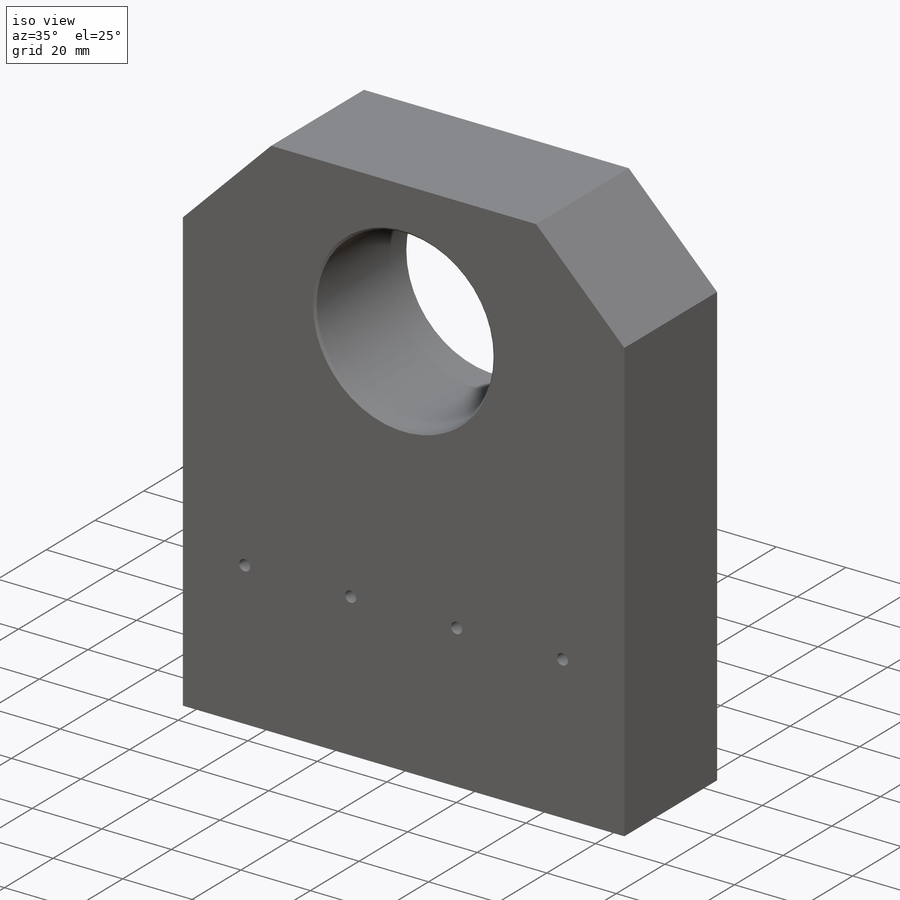
[diagram: iso view]
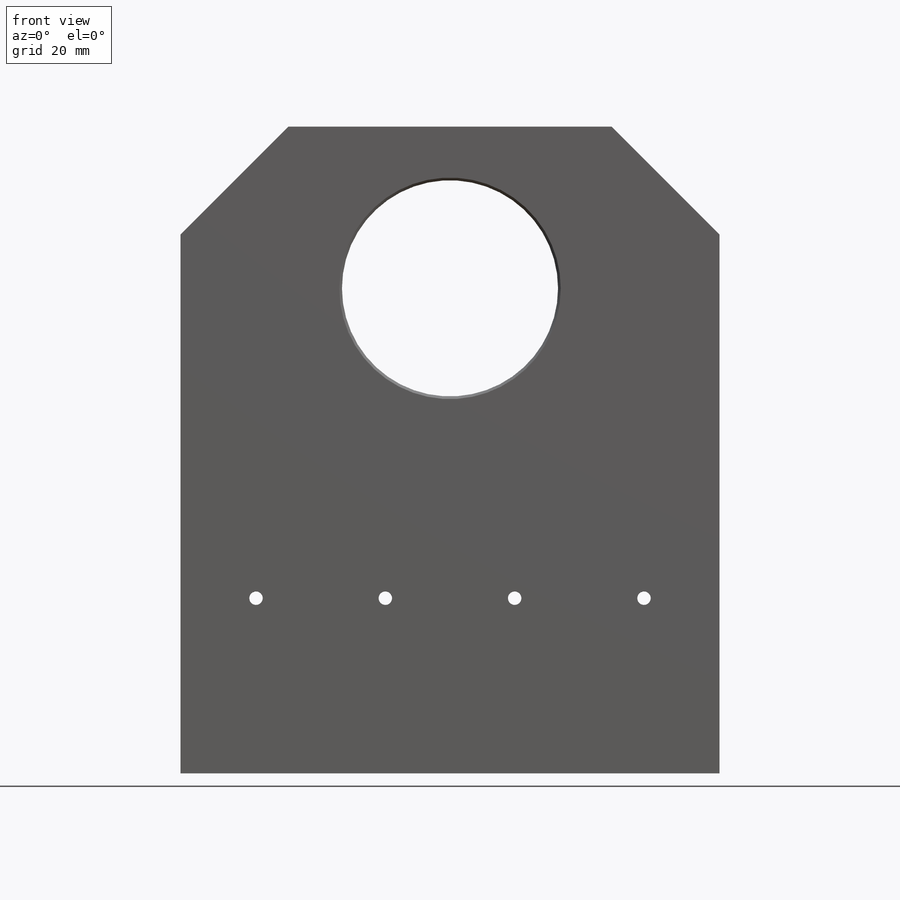
[diagram: front view]
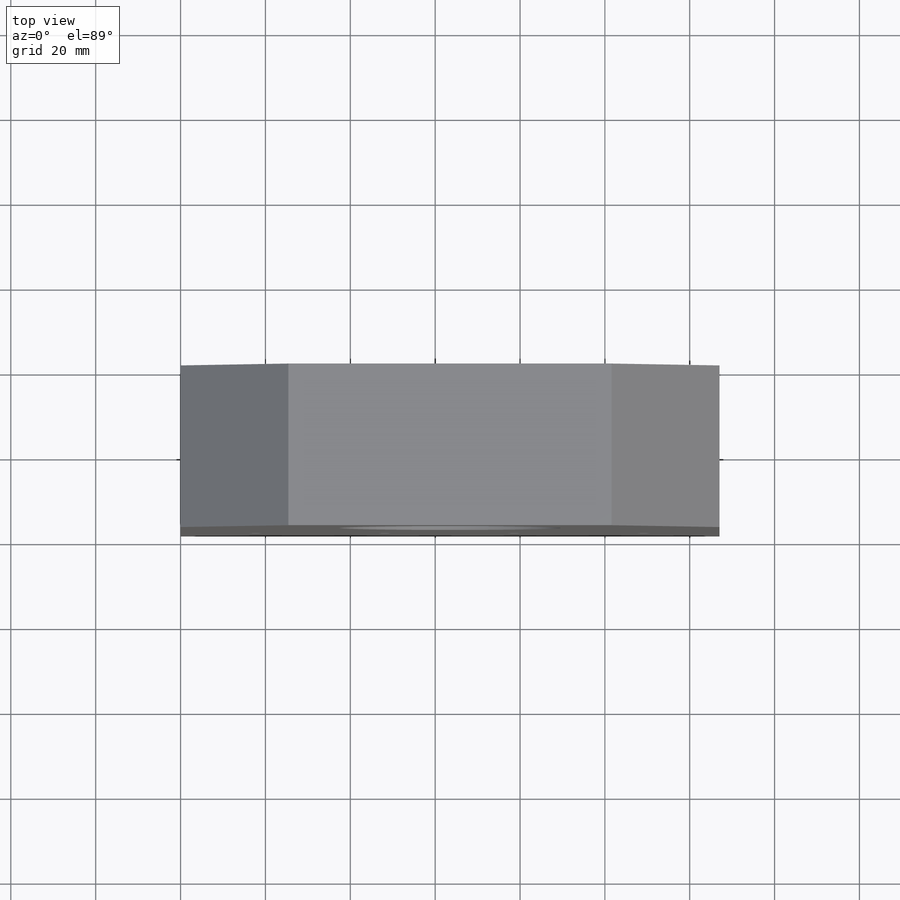
[diagram: top view]
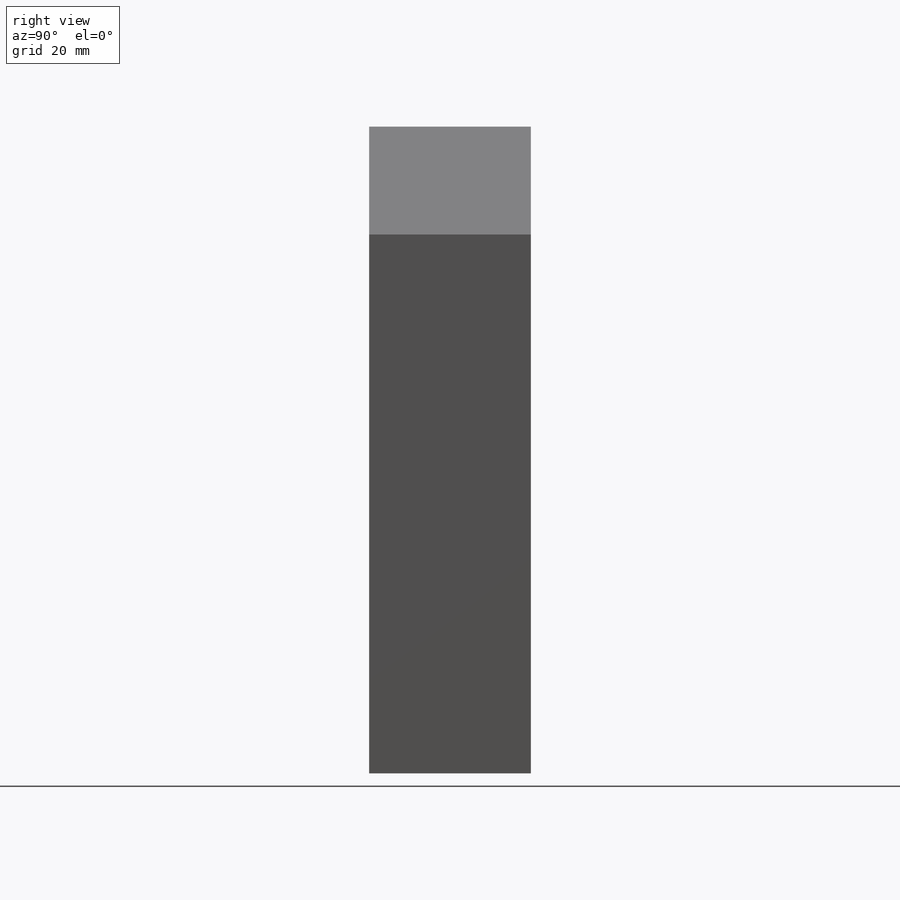
[diagram: right view]
SOLIDWORKS PART (.sldprt)
format: sldprt  version: not decoded by parser v0  size: 321,536 bytes
history: native  units: mm
features: sketch x7, thread x4, plane x3, hole x2, material x1, extrude x1, chamfer x1, cut_extrude x1 + 1 further entry (+10 scaffold rows collapsed)
feature tree (31):
  scaffold x10  (default folders/planes/origin — collapsed)
  material  "304 SSTL"
  plane  "XY"
  plane  "XZ"
  plane  "YZ"
  "Origin"  ID=-1
  sketch  "Sketch1"  dims[D4=50.927mm D1=152.4mm D2=127.0mm D3=114.3mm]
  extrude  "Extrude1"  Depth=38.1mm
  hole  "1 (1) Diameter Hole1"  Diameter=50.927mm Depth=38.1mm
  sketch  "Sketch6"  dims[D1=114.3mm D2=63.5mm]
  sketch  "Sketch5"  dims[hole-wizard template sketch: 46 standard entries collapsed; hole parameters kept: c15.Thru Hole Dia.=50.927mm c15.Thru Hole Depth=38.1mm c15.Near C'Sink Dia.=52.197mm c15.D4=~3.666174mm c15.Near C'Sink Angle=90.0deg c15.Far C'Sink Dia.=52.197mm c15.D6=~9.919017mm c15.Far C'Sink Angle=90.0deg]
  chamfer  "Chamfer1"  Distance=25.4mm Angle=45deg
  sketch  "Sketch2"  dims[c1.D2=~10.71626mm c1.D3=~10.71626mm c1.D4=~10.71626mm c1.D5=~10.71626mm c1.D6=~10.71626mm c2.D4=~10.71626mm c2.D1=12.7mm c2.D3=30.48mm c3.D4=60.96mm c3.D5=91.44mm c3.D6=~20.625311mm c4.D4=17.78mm]
  hole  "1/2-13 Tapped Hole1"  [1 undecoded]
  sketch  "3DSketch1"
  thread  "Cosmetic Thread1"  Diameter=31.75mm  [1 undecoded]
  thread  "Cosmetic Thread2"  Diameter=31.75mm  [1 undecoded]
  thread  "Cosmetic Thread3"  Diameter=31.75mm  [1 undecoded]
  thread  "Cosmetic Thread4"  Diameter=31.75mm  [1 undecoded]
  sketch  "Sketch3"  dims[hole-wizard template sketch: 39 standard entries collapsed; hole parameters kept: c13.Tap Drill Dia.=~10.71626mm c13.Tap Drill Depth=44.45mm c13.Near C'Sink Dia.=13.462mm c13.D4=~33.297463mm c13.Near C'Sink Angle=90.0deg c14.D5=~14.816244mm c14.Drill Angle=118.0deg]
  sketch  "Sketch4"  dims[D2=3.175mm D1=41.275mm]
  cut_extrude  "Cut-Extrude1"  [1 undecoded]
decode coverage: 13 of 16 modeling features carry decoded parameters; 1 rows unclassified (native names shown)
note: ~ marks probable driven/reference dimensions
note: 6 parameter values undecoded
note: suppression state not decoded; provenance and decode notes live in map.json
